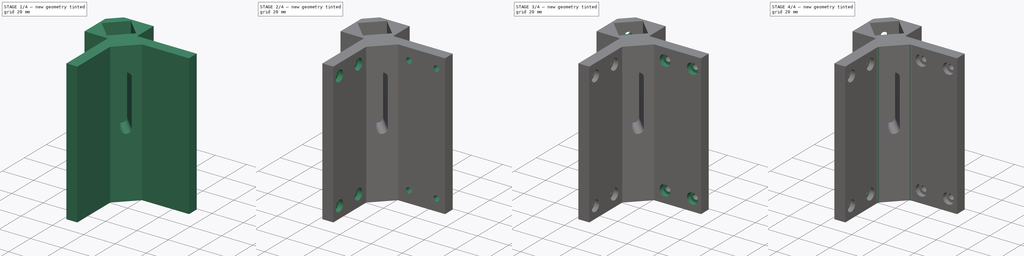
[diagram: build sequence overview — one tinted view per stage of 4, left to right]
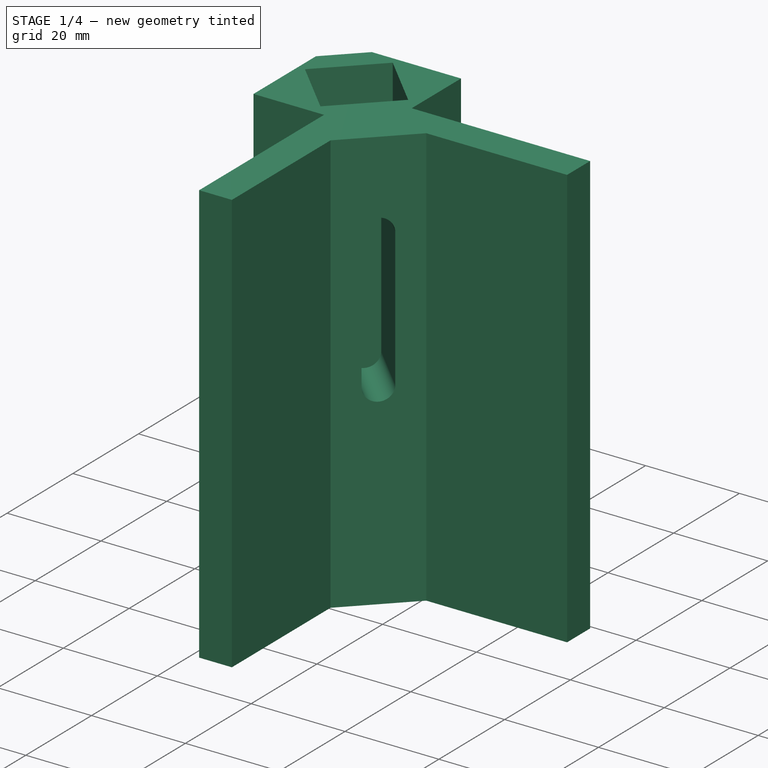
[diagram: stage 1 of 4 — iso view after this stage's code; geometry added in this stage tinted green]
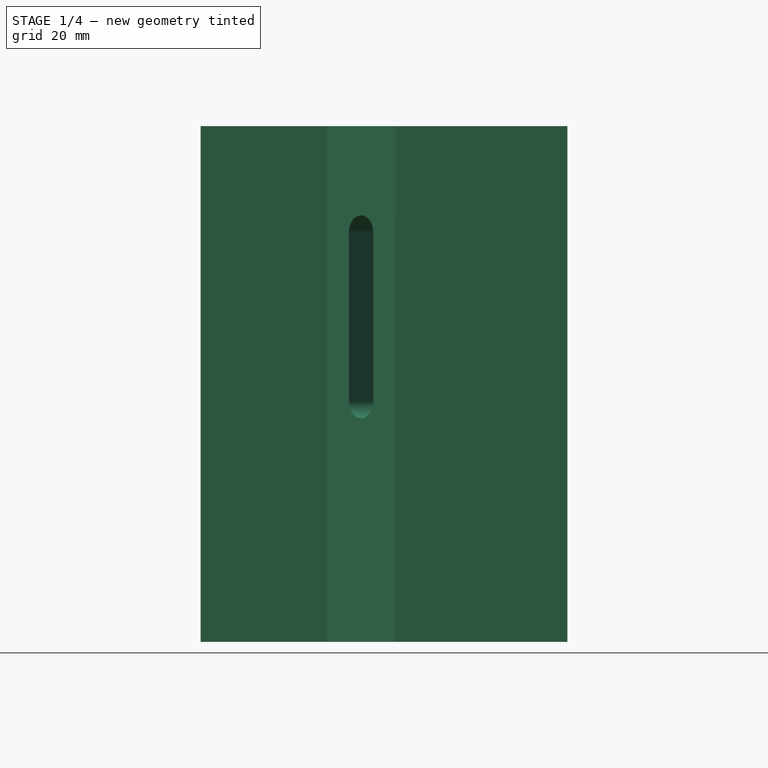
[diagram: stage 1 of 4 — front view after this stage's code; geometry added in this stage tinted green]
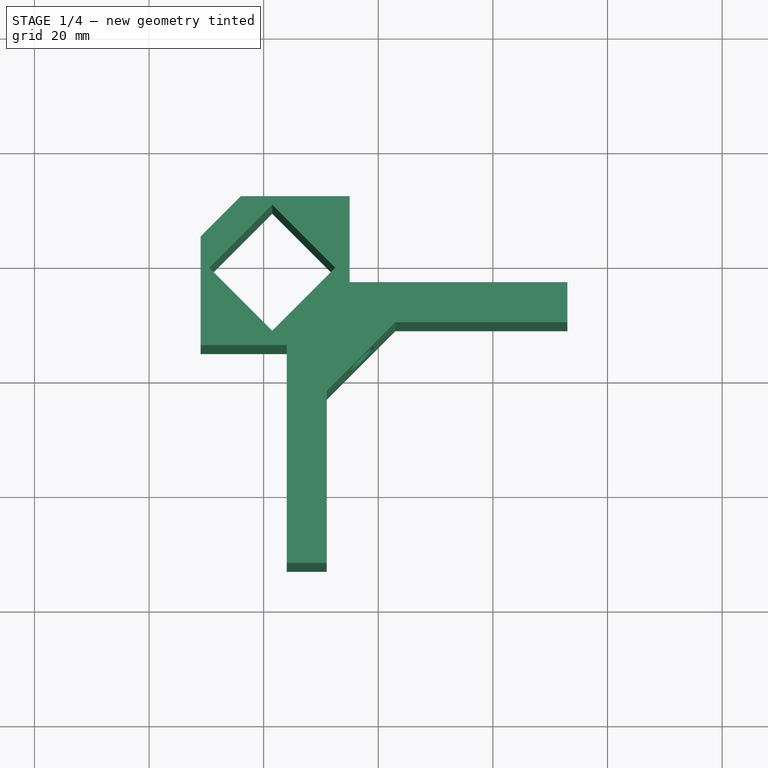
[diagram: stage 1 of 4 — top view after this stage's code; geometry added in this stage tinted green]
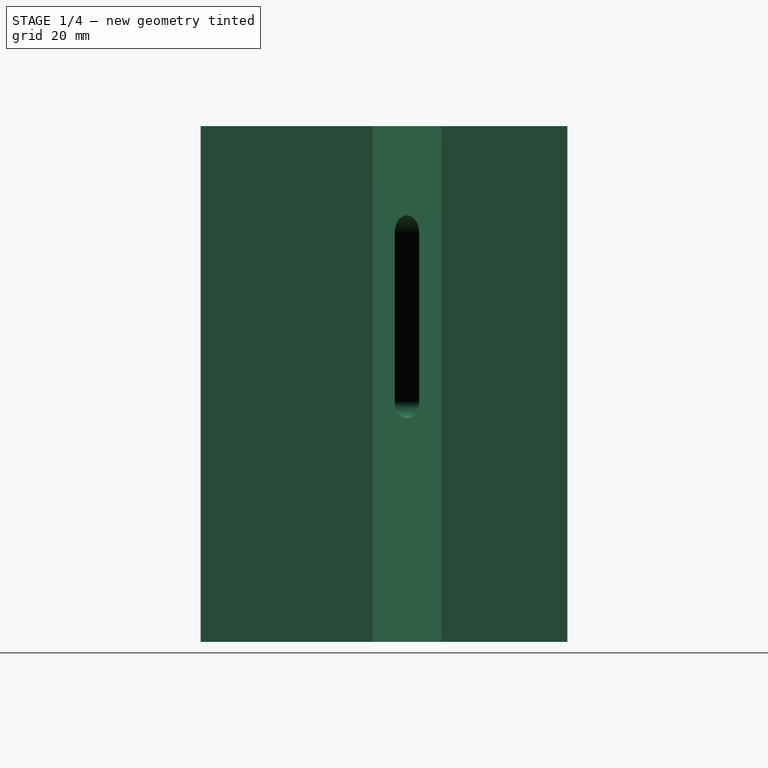
[diagram: stage 1 of 4 — right view after this stage's code; geometry added in this stage tinted green]
FCSTD DOCUMENT  (FreeCAD 0.15R4671 (Git))
Label: TallBottomCorner
License: All rights reserved
LicenseURL: http://en.wikipedia.org/wiki/All_rights_reserved
objects: Sketcher::SketchObject×9, PartDesign::Pocket×8, Part::Feature×6, PartDesign::Fillet×2, PartDesign::Pad×1
note: 35 computed .brp shape members not serialized (recipe doc carries the construction recipe); baked Part::Feature solids carry a one-line shape summary decoded from their .brp

FEATURE [Part::Feature] Part__Feature  label="OB1515_90mm001"
  Placement = pos=(-3.5,-15,-2.5) rot=(1,0,0;1.5708rad)
  shape: bbox 15 x 90 x 15 mm, 158 faces (baked)
FEATURE [Part::Feature] Part__Feature001  label="OB1515_90mm002"
  Placement = pos=(15,3.5,-2.5) rot=(0.57735,0.57735,0.57735;2.0944rad)
  shape: bbox 90 x 15 x 15 mm, 158 faces (baked)
FEATURE [Part::Feature] Part__Feature002  label="OB1515_90mm"
  Placement = pos=(1.5,-1.5,-75) rot=(0,0,1;0.785398rad)
  shape: bbox 21.01 x 21.01 x 90 mm, 158 faces (baked)
FEATURE [Sketcher::SketchObject] Sketch
  Placement = pos=(0,0,-10) rot=(0,0,1;0rad)
  sketch-geometry (16):
    g0: LineSegment StartX=-4 StartY=11 StartZ=0 EndX=-11 EndY=4 EndZ=0
    g1: LineSegment StartX=-11 StartY=4 StartZ=0 EndX=-11 EndY=-15 EndZ=0
    g2: LineSegment StartX=15 StartY=11 StartZ=0 EndX=-4 EndY=11 EndZ=0
    g3: LineSegment StartX=15 StartY=11 StartZ=0 EndX=15 EndY=-4 EndZ=0
    g4: LineSegment StartX=15 StartY=-4 StartZ=0 EndX=53 EndY=-4 EndZ=0
    g5: LineSegment StartX=-11 StartY=-15 StartZ=0 EndX=4.02862 EndY=-15 EndZ=0
    g6: LineSegment StartX=4.02862 StartY=-15 StartZ=0 EndX=4.02862 EndY=-53 EndZ=0
    g7: LineSegment StartX=1.5 StartY=9.5 StartZ=0 EndX=12.5 EndY=-1.5 EndZ=0
    g8: LineSegment StartX=12.5 StartY=-1.5 StartZ=0 EndX=1.5 EndY=-12.5 EndZ=0
    g9: LineSegment StartX=1.5 StartY=-12.5 StartZ=0 EndX=-9.5 EndY=-1.5 EndZ=0
    g10: LineSegment StartX=-9.5 StartY=-1.5 StartZ=0 EndX=1.5 EndY=9.5 EndZ=0
    g11: LineSegment StartX=53 StartY=-4 StartZ=0 EndX=53 EndY=-11 EndZ=0
    g12: LineSegment StartX=53 StartY=-11 StartZ=0 EndX=23 EndY=-11 EndZ=0
    g13: LineSegment StartX=23 StartY=-11 StartZ=0 EndX=11 EndY=-23 EndZ=0
    g14: LineSegment StartX=11 StartY=-23 StartZ=0 EndX=11 EndY=-53 EndZ=0
    g15: LineSegment StartX=11 StartY=-53 StartZ=0 EndX=4.02862 EndY=-53 EndZ=0
  constraints (23):
    c: Coincident(g0,g1)
    c: Vertical(g1)
    c: Coincident(g2,g0)
    c: Horizontal(g2)
    c: Coincident(g2,g3)
    c: Vertical(g3)
    c: Coincident(g3,g4)
    c: Horizontal(g4)
    c: Coincident(g1,g5)
    c: Horizontal(g5)
    c: Coincident(g5,g6)
    c: Vertical(g6)
    c: Coincident(g7,g8)
    c: Coincident(g8,g9)
    c: Coincident(g9,g10)
    c: Coincident(g10,g7)
    c: DistanceY(g-1,g1) = -15
    c: DistanceX(g-1,g2) = 15
    c: Coincident(g11,g12)
    c: Coincident(g12,g13)
    c: Coincident(g13,g14)
    c: Coincident(g14,g15)
    c: Coincident(g6,g15)
FEATURE [PartDesign::Pad] Pad
  Length = 90
  Length2 = 100
  Placement = pos=(0,0,-10) rot=(0,0,1;0rad)
  Sketch = -> Sketch
  Type = 0
FEATURE [Part::Feature] Part__Feature003  label="OB1515_90mm003"
  Placement = pos=(-3.5,-15,72.5) rot=(1,0,0;1.5708rad)
  shape: bbox 15 x 90 x 15 mm, 158 faces (baked)
FEATURE [Part::Feature] Part__Feature004  label="OB1515_90mm004"
  Placement = pos=(15,3.5,72.5) rot=(0.57735,0.57735,0.57735;2.0944rad)
  shape: bbox 90 x 15 x 15 mm, 158 faces (baked)
FEATURE [Sketcher::SketchObject] Sketch001
  Placement = pos=(17,-17,-10) rot=(0.862856,0.357407,0.357407;1.71777rad)
  Support = -> Pad [Face11]
  sketch-geometry (4):
    g0: ArcOfCircle CenterX=0 CenterY=42 CenterZ=0 NormalX=0 NormalY=0 NormalZ=1 Radius=3 StartAngle=3.14159 EndAngle=6.28319
    g1: ArcOfCircle CenterX=0 CenterY=71.4245 CenterZ=0 NormalX=0 NormalY=0 NormalZ=1 Radius=3 StartAngle=0 EndAngle=3.14159
    g2: LineSegment StartX=3 StartY=42 StartZ=0 EndX=3 EndY=71.4245 EndZ=0
    g3: LineSegment StartX=-3 StartY=42 StartZ=0 EndX=-3 EndY=71.4245 EndZ=0
  constraints (6):
    c: Tangent(g0,g3) = 1.5708
    c: Tangent(g0,g2) = -1.5708
    c: Tangent(g2,g1) = -1.5708
    c: Tangent(g3,g1) = 1.5708
    c: Vertical(g2)
    c: Equal(g0,g1)
FEATURE [PartDesign::Pocket] Pocket
  Length = 15
  Placement = pos=(0,0,-10) rot=(0,0,1;0rad)
  Sketch = -> Sketch001
  Type = 0
FEATURE [Sketcher::SketchObject] Sketch002
  Placement = pos=(0,0,-10) rot=(1,0,0;3.14159rad)
  Support = -> Pocket [Face4]
  sketch-geometry (1):
    g0: Circle CenterX=11 CenterY=12 CenterZ=0 NormalX=0 NormalY=0 NormalZ=1 Radius=3
  constraints (1):
    c: Radius(g0) = 3
FEATURE [PartDesign::Pocket] Pocket001
  Length = 30
  Placement = pos=(0,0,-10) rot=(0,0,1;0rad)
  Sketch = -> Sketch002
  Type = 0
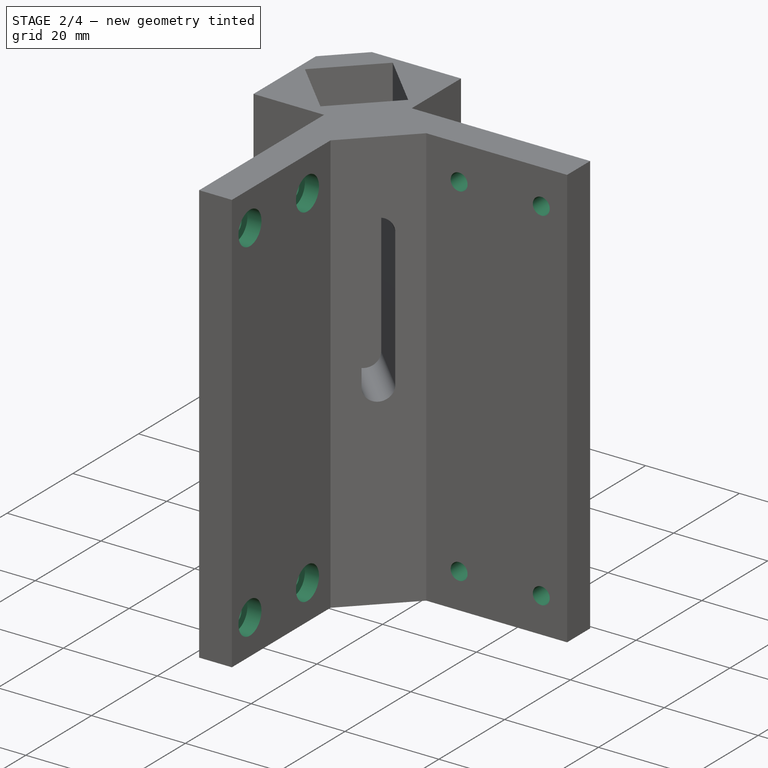
[diagram: stage 2 of 4 — iso view after this stage's code; geometry added in this stage tinted green]
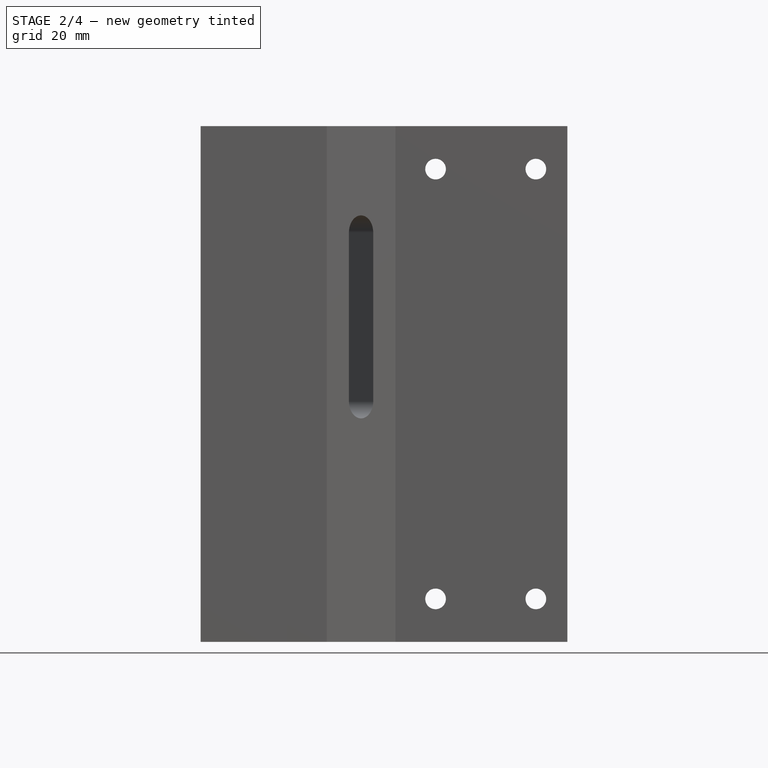
[diagram: stage 2 of 4 — front view after this stage's code; geometry added in this stage tinted green]
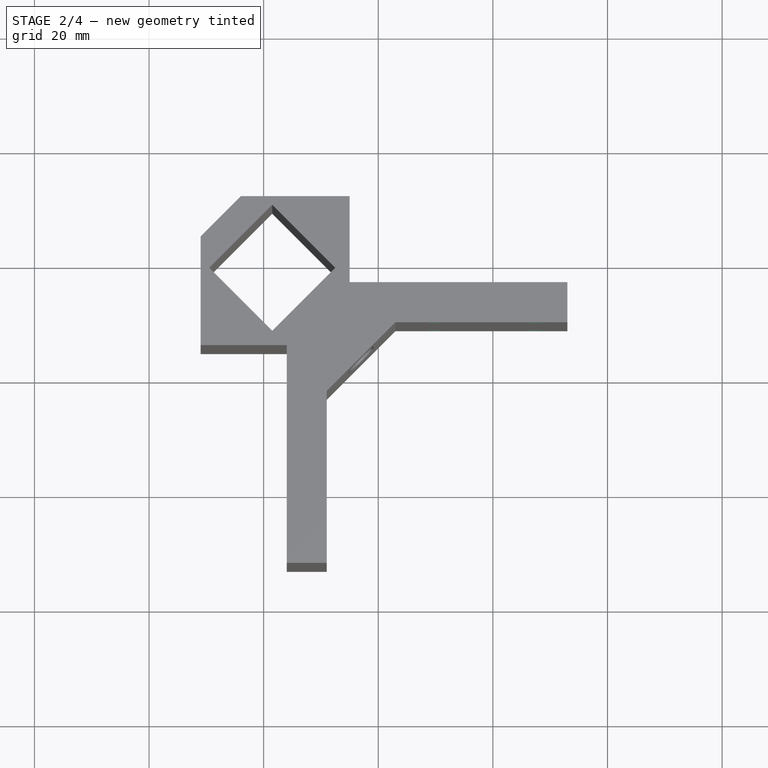
[diagram: stage 2 of 4 — top view after this stage's code; geometry added in this stage tinted green]
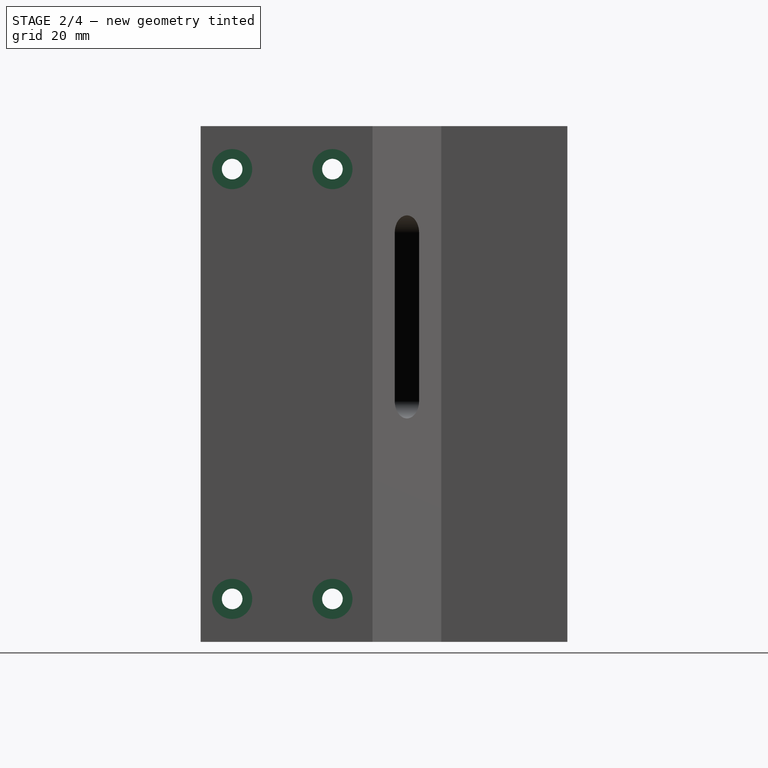
[diagram: stage 2 of 4 — right view after this stage's code; geometry added in this stage tinted green]
FEATURE [Sketcher::SketchObject] Sketch003
  Placement = pos=(11,0,-10) rot=(0.57735,0.57735,0.57735;2.0944rad)
  Support = -> Pocket001 [Face9]
  sketch-geometry (4):
    g0: Circle CenterX=-47.5 CenterY=82.5 CenterZ=0 NormalX=0 NormalY=0 NormalZ=1 Radius=1.8
    g1: Circle CenterX=-30 CenterY=82.5 CenterZ=0 NormalX=0 NormalY=0 NormalZ=1 Radius=1.8
    g2: Circle CenterX=-47.5 CenterY=7.5 CenterZ=0 NormalX=0 NormalY=0 NormalZ=1 Radius=1.8
    g3: Circle CenterX=-30 CenterY=7.5 CenterZ=0 NormalX=0 NormalY=0 NormalZ=1 Radius=1.8
  constraints (4):
    c: Radius(g0) = 1.8
    c: Radius(g1) = 1.8
    c: Radius(g2) = 1.8
    c: Radius(g3) = 1.8
FEATURE [PartDesign::Pocket] Pocket002
  Length = 5
  Placement = pos=(0,0,-10) rot=(0,0,1;0rad)
  Sketch = -> Sketch003
  Type = 1
FEATURE [Sketcher::SketchObject] Sketch004
  Placement = pos=(11,0,-10) rot=(0.57735,0.57735,0.57735;2.0944rad)
  Support = -> Pocket002 [Face9]
  sketch-geometry (4):
    g0: Circle CenterX=-47.5 CenterY=82.5 CenterZ=0 NormalX=0 NormalY=0 NormalZ=1 Radius=3.5
    g1: Circle CenterX=-30 CenterY=82.5 CenterZ=0 NormalX=0 NormalY=0 NormalZ=1 Radius=3.5
    g2: Circle CenterX=-47.5 CenterY=7.5 CenterZ=0 NormalX=0 NormalY=0 NormalZ=1 Radius=3.5
    g3: Circle CenterX=-30 CenterY=7.5 CenterZ=0 NormalX=0 NormalY=0 NormalZ=1 Radius=3.5
  constraints (4):
    c: Radius(g2) = 3.5
    c: Radius(g3) = 3.5
    c: Radius(g0) = 3.5
    c: Radius(g1) = 3.5
FEATURE [PartDesign::Pocket] Pocket003
  Length = 3
  Placement = pos=(0,0,-10) rot=(0,0,1;0rad)
  Sketch = -> Sketch004
  Type = 0
FEATURE [Sketcher::SketchObject] Sketch005
  Placement = pos=(0,-11,-10) rot=(1,0,0;1.5708rad)
  Support = -> Pocket003 [Face3]
  sketch-geometry (4):
    g0: Circle CenterX=47.5 CenterY=82.5 CenterZ=0 NormalX=0 NormalY=0 NormalZ=1 Radius=1.8
    g1: Circle CenterX=30 CenterY=82.5 CenterZ=0 NormalX=0 NormalY=0 NormalZ=1 Radius=1.8
    g2: Circle CenterX=47.5 CenterY=7.5 CenterZ=0 NormalX=0 NormalY=0 NormalZ=1 Radius=1.8
    g3: Circle CenterX=30 CenterY=7.5 CenterZ=0 NormalX=0 NormalY=0 NormalZ=1 Radius=1.8
  constraints (4):
    c: Radius(g1) = 1.8
    c: Radius(g0) = 1.8
    c: Radius(g2) = 1.8
    c: Radius(g3) = 1.8
FEATURE [PartDesign::Pocket] Pocket004
  Length = 5
  Placement = pos=(0,0,-10) rot=(0,0,1;0rad)
  Sketch = -> Sketch005
  Type = 1
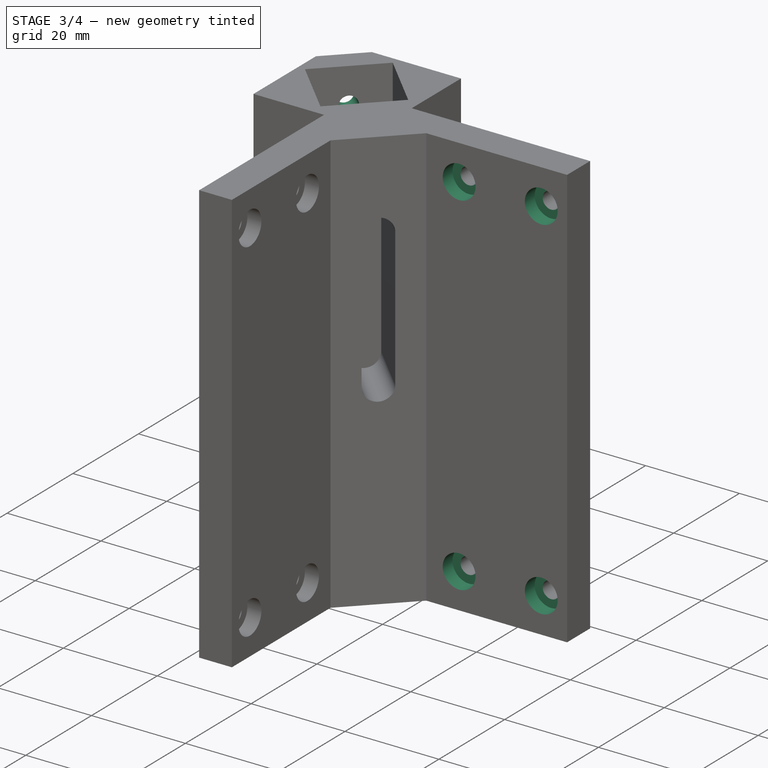
[diagram: stage 3 of 4 — iso view after this stage's code; geometry added in this stage tinted green]
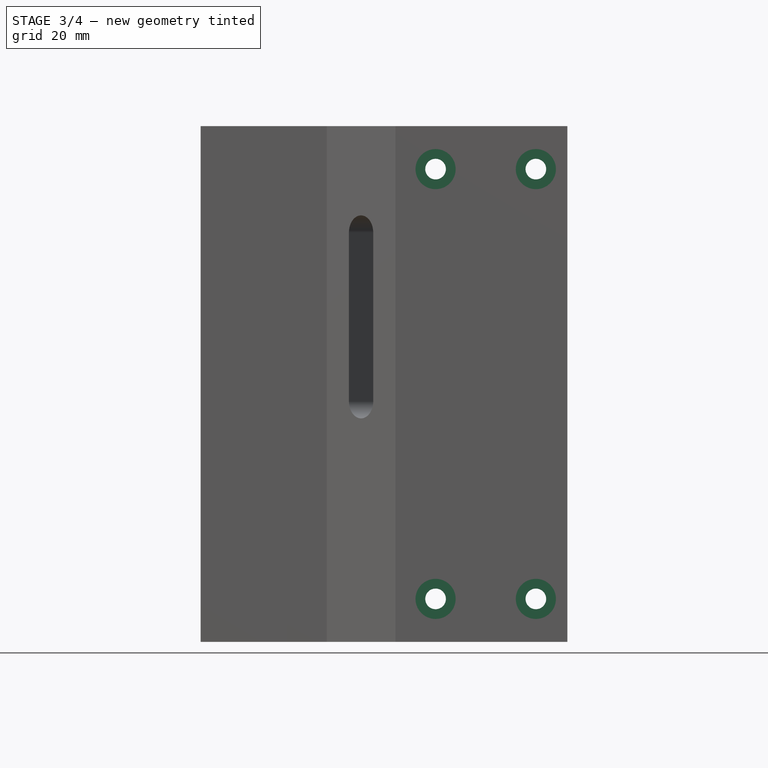
[diagram: stage 3 of 4 — front view after this stage's code; geometry added in this stage tinted green]
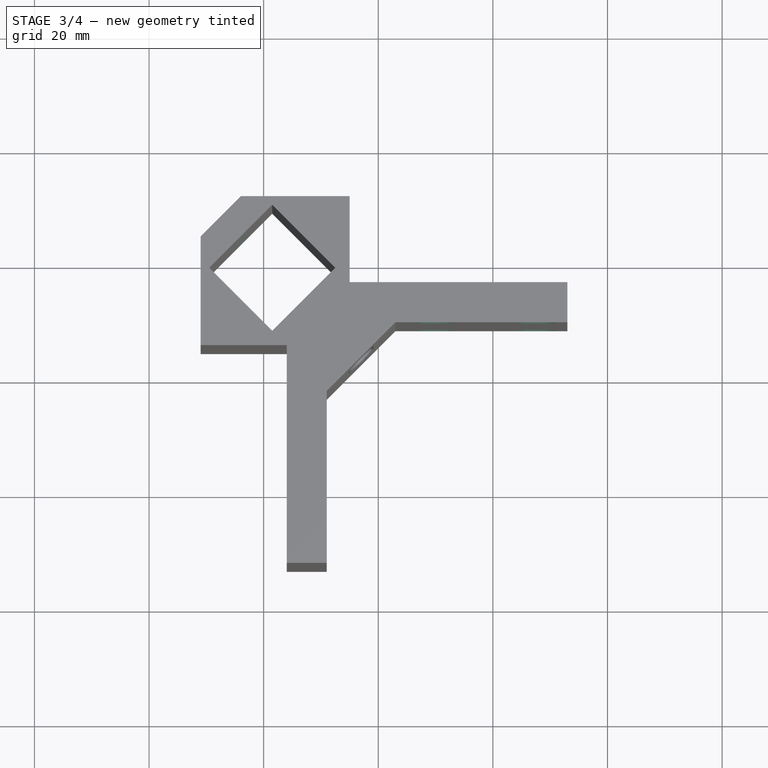
[diagram: stage 3 of 4 — top view after this stage's code; geometry added in this stage tinted green]
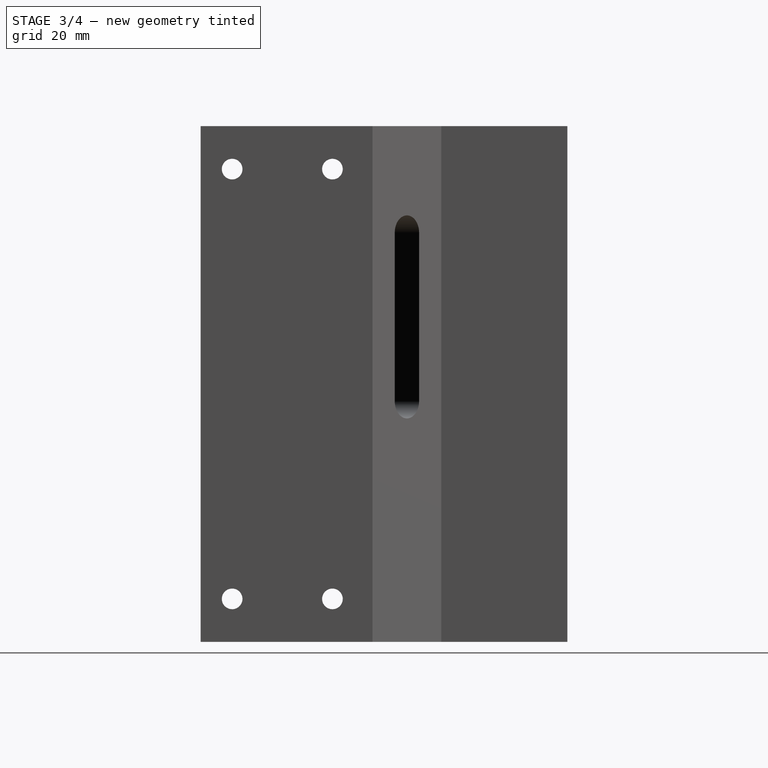
[diagram: stage 3 of 4 — right view after this stage's code; geometry added in this stage tinted green]
FEATURE [Sketcher::SketchObject] Sketch006
  Placement = pos=(0,-11,-10) rot=(1,0,0;1.5708rad)
  Support = -> Pocket004 [Face3]
  sketch-geometry (4):
    g0: Circle CenterX=30 CenterY=82.5 CenterZ=0 NormalX=0 NormalY=0 NormalZ=1 Radius=3.5
    g1: Circle CenterX=47.5 CenterY=82.5 CenterZ=0 NormalX=0 NormalY=0 NormalZ=1 Radius=3.5
    g2: Circle CenterX=47.5 CenterY=7.5 CenterZ=0 NormalX=0 NormalY=0 NormalZ=1 Radius=3.5
    g3: Circle CenterX=30 CenterY=7.5 CenterZ=0 NormalX=0 NormalY=0 NormalZ=1 Radius=3.5
  constraints (4):
    c: Radius(g3) = 3.5
    c: Radius(g2) = 3.5
    c: Radius(g1) = 3.5
    c: Radius(g0) = 3.5
FEATURE [PartDesign::Pocket] Pocket005
  Length = 3
  Placement = pos=(0,0,-10) rot=(0,0,1;0rad)
  Sketch = -> Sketch006
  Type = 0
FEATURE [Sketcher::SketchObject] Sketch007
  Placement = pos=(-7.5,7.5,-10) rot=(-0.281085,0.678598,0.678598;3.68962rad)
  Support = -> Pocket005 [Face18]
  sketch-geometry (2):
    g0: Circle CenterX=0 CenterY=7.5 CenterZ=0 NormalX=0 NormalY=0 NormalZ=1 Radius=1.8
    g1: Circle CenterX=0 CenterY=82.5 CenterZ=0 NormalX=0 NormalY=0 NormalZ=1 Radius=1.8
  constraints (2):
    c: Radius(g1) = 1.8
    c: Radius(g0) = 1.8
FEATURE [PartDesign::Pocket] Pocket006
  Length = 15
  Placement = pos=(0,0,-10) rot=(0,0,1;0rad)
  Sketch = -> Sketch007
  Type = 0
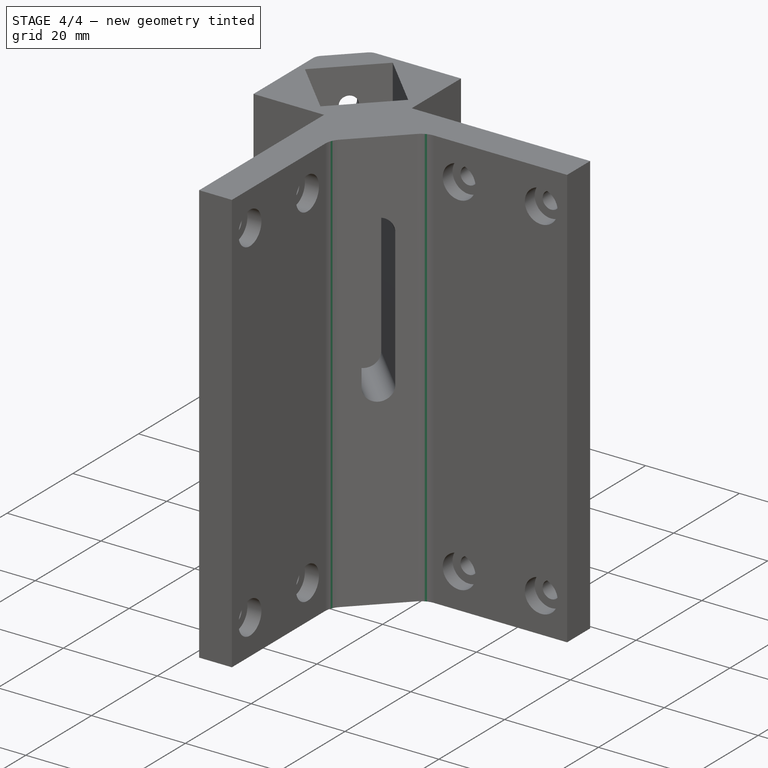
[diagram: stage 4 of 4 — iso view after this stage's code; geometry added in this stage tinted green]
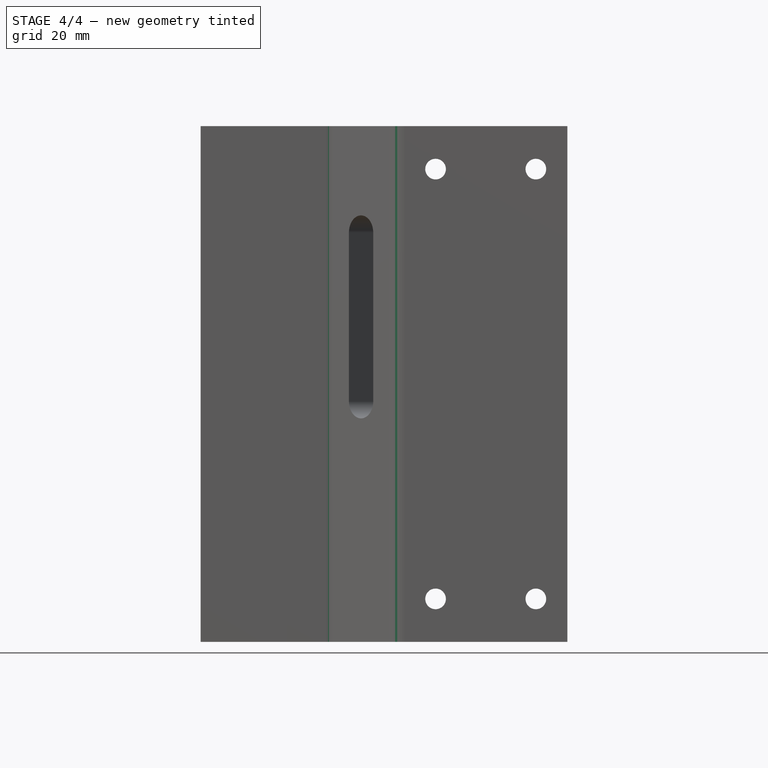
[diagram: stage 4 of 4 — front view after this stage's code; geometry added in this stage tinted green]
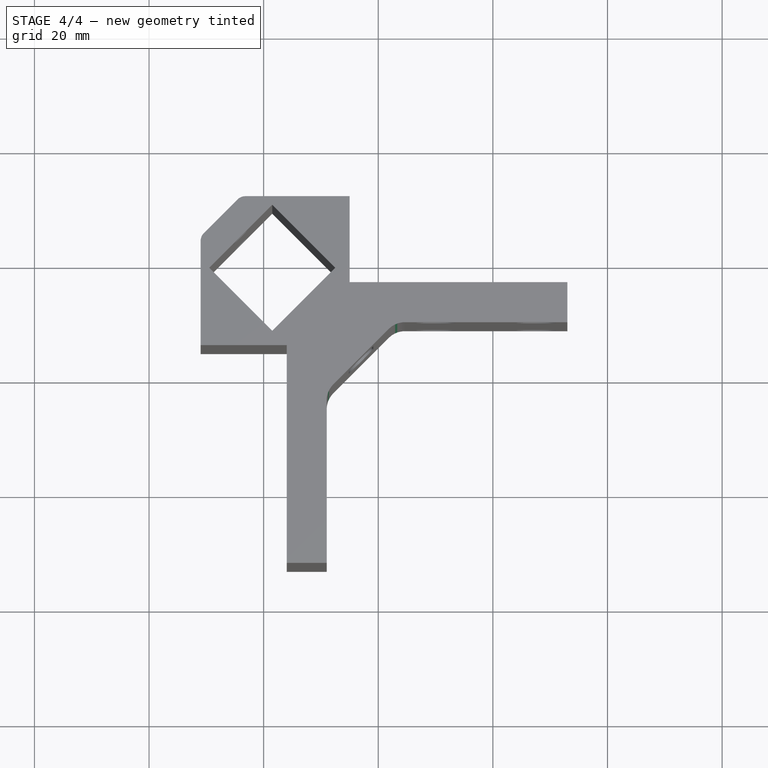
[diagram: stage 4 of 4 — top view after this stage's code; geometry added in this stage tinted green]
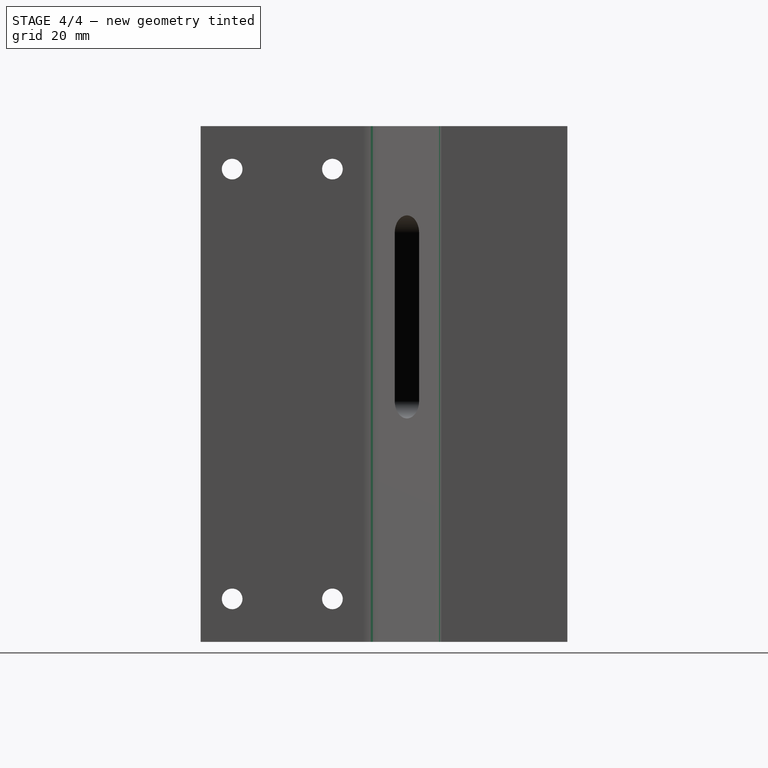
[diagram: stage 4 of 4 — right view after this stage's code; geometry added in this stage tinted green]
FEATURE [Sketcher::SketchObject] Sketch008
  Placement = pos=(-7.5,7.5,-10) rot=(-0.281085,0.678598,0.678598;3.68962rad)
  Support = -> Pocket006 [Face18]
  sketch-geometry (2):
    g0: Circle CenterX=0 CenterY=7.5 CenterZ=0 NormalX=0 NormalY=0 NormalZ=1 Radius=3.5
    g1: Circle CenterX=0 CenterY=82.5 CenterZ=0 NormalX=0 NormalY=0 NormalZ=1 Radius=3.5
  constraints (2):
    c: Radius(g1) = 3.5
    c: Radius(g0) = 3.5
FEATURE [PartDesign::Pocket] Pocket007
  Length = 3
  Placement = pos=(0,0,-10) rot=(0,0,1;0rad)
  Sketch = -> Sketch008
  Type = 0
FEATURE [PartDesign::Fillet] Fillet
  Base = -> Pocket007 [Edge74,Edge68]
  Placement = pos=(0,0,-10) rot=(0,0,1;0rad)
  Radius = 2
FEATURE [PartDesign::Fillet] Fillet001
  Base = -> Fillet [Edge52,Edge44]
  Placement = pos=(0,0,-10) rot=(0,0,1;0rad)
  Radius = 4
FEATURE [Part::Feature] Fillet002  label="BottomCorner"
  shape: bbox 64 x 64 x 90 mm, 58 faces (baked)
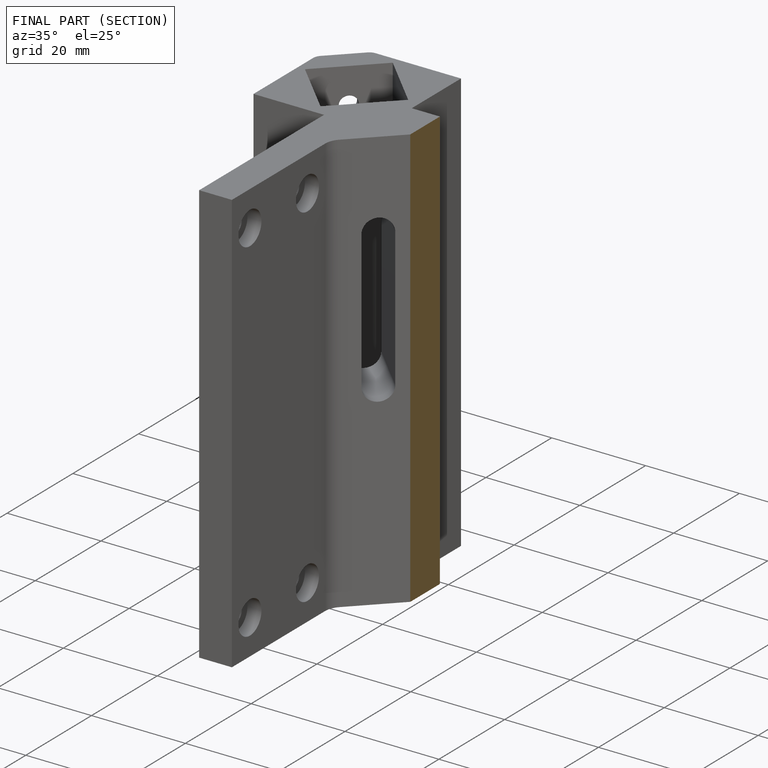
[diagram: finished part — half-section view (interior)]
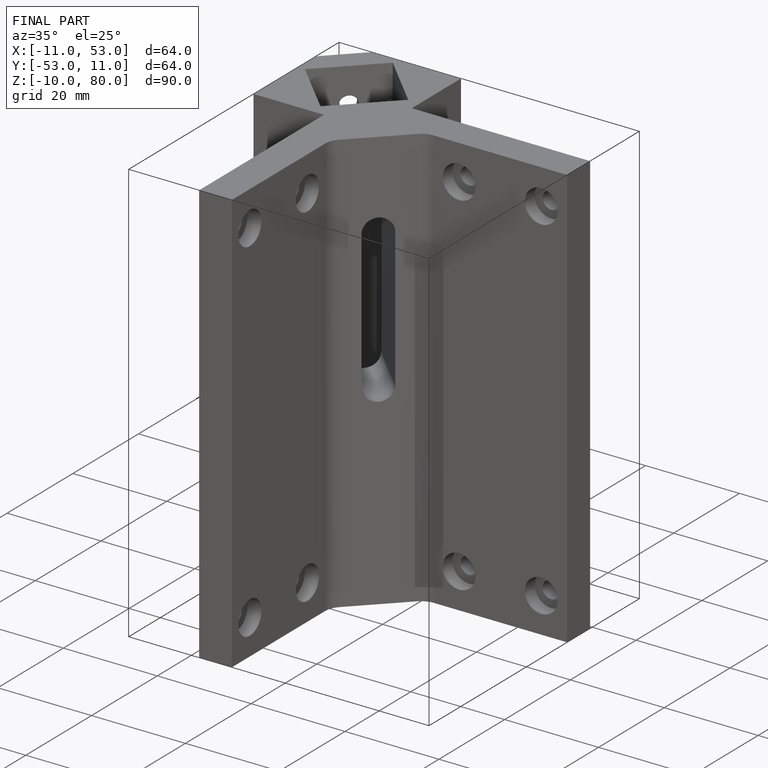
[diagram: finished part — iso view with bounding-box wireframe]
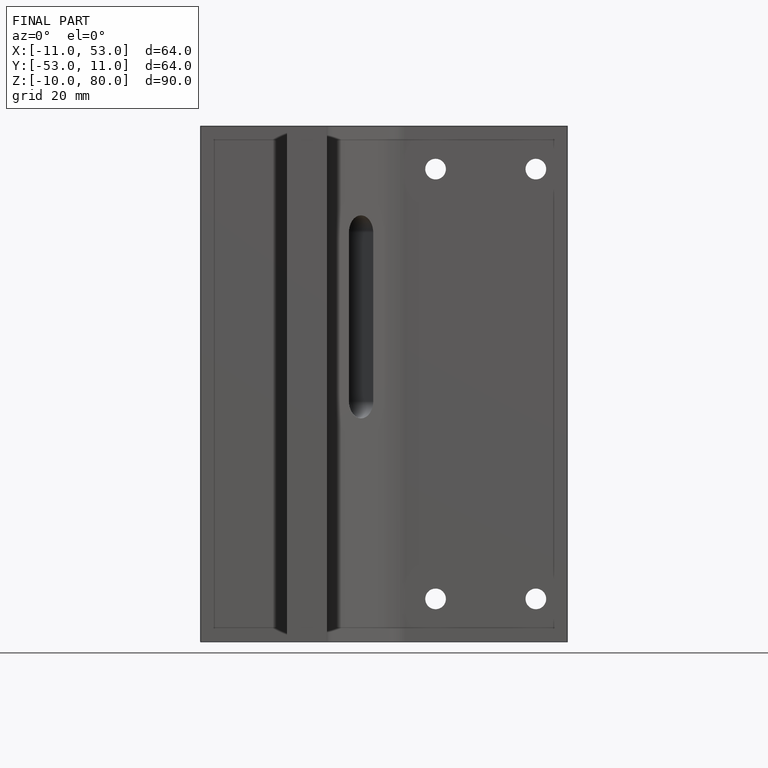
[diagram: finished part — front view with bounding-box wireframe]
